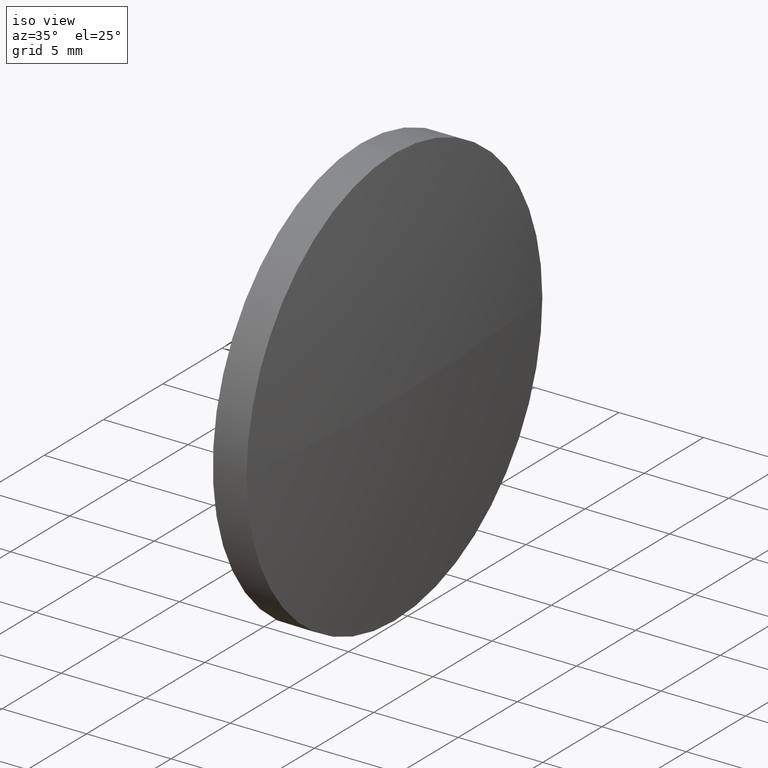
[diagram: clean part render]
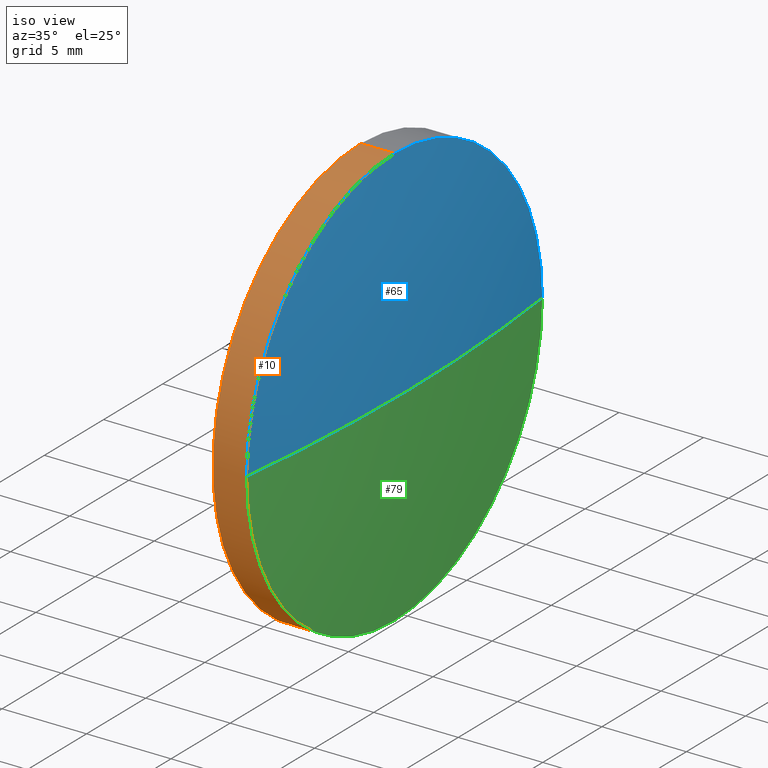
[diagram: same view with three faces highlighted in distinct colors, each labeled with its STEP entity id]
A machine part, iso view with three faces highlighted in distinct colors.
Their STEP definitions:

[orange] entity #10 — the highlighted cylindrical surface (partial cylindrical patch) has radius 12.5 mm, axis along (-1, -0, -0).
#2 = VERTEX_POINT ( 'NONE', #161 ) ;
#3 = EDGE_CURVE ( 'NONE', #50, #124, #34, .T. ) ;
#7 = DIRECTION ( 'NONE',  ( -1.000000000000000000, -0.0000000000000000000, -0.0000000000000000000 ) ) ;
#10 = ADVANCED_FACE ( 'NONE', ( #75 ), #104, .T. ) ;
#13 = EDGE_CURVE ( 'NONE', #90, #50, #142, .T. ) ;
#19 = EDGE_CURVE ( 'NONE', #159, #2, #67, .T. ) ;
#28 = ORIENTED_EDGE ( 'NONE', *, *, #3, .T. ) ;
#31 = AXIS2_PLACEMENT_3D ( 'NONE', #164, #106, #108 ) ;
#34 = LINE ( 'NONE', #174, #97 ) ;
#40 = CARTESIAN_POINT ( 'NONE',  ( 405.4479230910874300, 108.2513484294471600, 12.49999999999999600 ) ) ;
#50 = VERTEX_POINT ( 'NONE', #40 ) ;
#53 = AXIS2_PLACEMENT_3D ( 'NONE', #129, #7, #126 ) ;
#62 = DIRECTION ( 'NONE',  ( 0.0000000000000000000, 0.0000000000000000000, 1.000000000000000000 ) ) ;
#67 = LINE ( 'NONE', #87, #109 ) ;
#69 = AXIS2_PLACEMENT_3D ( 'NONE', #167, #117, #62 ) ;
#72 = EDGE_CURVE ( 'NONE', #159, #90, #133, .T. ) ;
#75 = FACE_OUTER_BOUND ( 'NONE', #86, .T. ) ;
#77 = AXIS2_PLACEMENT_3D ( 'NONE', #89, #147, #132 ) ;
#86 = EDGE_LOOP ( 'NONE', ( #128, #111, #123, #28, #156 ) ) ;
#87 = CARTESIAN_POINT ( 'NONE',  ( 401.0823071883264700, 108.2513484294471600, -12.49999999999999600 ) ) ;
#89 = CARTESIAN_POINT ( 'NONE',  ( 405.4479230910874300, 108.2513484294471600, 0.0000000000000000000 ) ) ;
#90 = VERTEX_POINT ( 'NONE', #114 ) ;
#91 = DIRECTION ( 'NONE',  ( -1.000000000000000000, -0.0000000000000000000, -0.0000000000000000000 ) ) ;
#97 = VECTOR ( 'NONE', #173, 1000.000000000000000 ) ;
#104 = CYLINDRICAL_SURFACE ( 'NONE', #53, 12.49999999999999600 ) ;
#106 = DIRECTION ( 'NONE',  ( -1.000000000000000000, -0.0000000000000000000, -0.0000000000000000000 ) ) ;
#108 = DIRECTION ( 'NONE',  ( 0.0000000000000000000, 0.0000000000000000000, 1.000000000000000000 ) ) ;
#109 = VECTOR ( 'NONE', #91, 1000.000000000000000 ) ;
#111 = ORIENTED_EDGE ( 'NONE', *, *, #72, .T. ) ;
#114 = CARTESIAN_POINT ( 'NONE',  ( 405.4479230910874300, 95.75134842944724800, 0.0000000000000000000 ) ) ;
#117 = DIRECTION ( 'NONE',  ( -1.000000000000000000, -0.0000000000000000000, -0.0000000000000000000 ) ) ;
#123 = ORIENTED_EDGE ( 'NONE', *, *, #13, .T. ) ;
#124 = VERTEX_POINT ( 'NONE', #150 ) ;
#126 = DIRECTION ( 'NONE',  ( 0.0000000000000000000, 0.0000000000000000000, 1.000000000000000000 ) ) ;
#128 = ORIENTED_EDGE ( 'NONE', *, *, #19, .F. ) ;
#129 = CARTESIAN_POINT ( 'NONE',  ( 401.0823071883264700, 108.2513484294471600, 0.0000000000000000000 ) ) ;
#132 = DIRECTION ( 'NONE',  ( 0.0000000000000000000, 0.0000000000000000000, 1.000000000000000000 ) ) ;
#133 = CIRCLE ( 'NONE', #31, 12.49999999999999600 ) ;
#138 = EDGE_CURVE ( 'NONE', #2, #124, #148, .T. ) ;
#142 = CIRCLE ( 'NONE', #77, 12.49999999999999600 ) ;
#147 = DIRECTION ( 'NONE',  ( -1.000000000000000000, -0.0000000000000000000, -0.0000000000000000000 ) ) ;
#148 = CIRCLE ( 'NONE', #69, 12.49999999999999600 ) ;
#150 = CARTESIAN_POINT ( 'NONE',  ( 403.4479230910874300, 108.2513484294471600, 12.49999999999999600 ) ) ;
#156 = ORIENTED_EDGE ( 'NONE', *, *, #138, .F. ) ;
#159 = VERTEX_POINT ( 'NONE', #176 ) ;
#161 = CARTESIAN_POINT ( 'NONE',  ( 403.4479230910874300, 108.2513484294471600, -12.49999999999999600 ) ) ;
#164 = CARTESIAN_POINT ( 'NONE',  ( 405.4479230910874300, 108.2513484294471600, 0.0000000000000000000 ) ) ;
#167 = CARTESIAN_POINT ( 'NONE',  ( 403.4479230910874300, 108.2513484294471600, 0.0000000000000000000 ) ) ;
#173 = DIRECTION ( 'NONE',  ( -1.000000000000000000, -0.0000000000000000000, -0.0000000000000000000 ) ) ;
#174 = CARTESIAN_POINT ( 'NONE',  ( 401.0823071883264700, 108.2513484294471600, 12.49999999999999600 ) ) ;
#176 = CARTESIAN_POINT ( 'NONE',  ( 405.4479230910874300, 108.2513484294471600, -12.49999999999999600 ) ) ;

[blue] entity #65 — the highlighted spherical surface has radius 103.176 mm.
#5 = FACE_OUTER_BOUND ( 'NONE', #70, .T. ) ;
#6 = CARTESIAN_POINT ( 'NONE',  ( 303.0318704595082400, 108.2513484294472100, 0.0000000000000000000 ) ) ;
#11 = DIRECTION ( 'NONE',  ( 0.0000000000000000000, 0.0000000000000000000, 1.000000000000000000 ) ) ;
#13 = EDGE_CURVE ( 'NONE', #90, #50, #142, .T. ) ;
#14 = AXIS2_PLACEMENT_3D ( 'NONE', #20, #179, #18 ) ;
#18 = DIRECTION ( 'NONE',  ( 0.0000000000000000000, 0.0000000000000000000, 1.000000000000000000 ) ) ;
#20 = CARTESIAN_POINT ( 'NONE',  ( 405.4479230910874300, 108.2513484294471600, 0.0000000000000000000 ) ) ;
#24 = AXIS2_PLACEMENT_3D ( 'NONE', #92, #66, #178 ) ;
#27 = EDGE_CURVE ( 'NONE', #52, #90, #145, .T. ) ;
#32 = CARTESIAN_POINT ( 'NONE',  ( 405.4479230910874300, 120.7513484294471200, 1.530808498934179500E-015 ) ) ;
#40 = CARTESIAN_POINT ( 'NONE',  ( 405.4479230910874300, 108.2513484294471600, 12.49999999999999600 ) ) ;
#50 = VERTEX_POINT ( 'NONE', #40 ) ;
#52 = VERTEX_POINT ( 'NONE', #58 ) ;
#54 = CIRCLE ( 'NONE', #24, 103.1760526315792000 ) ;
#58 = CARTESIAN_POINT ( 'NONE',  ( 406.2079230910874200, 108.2513484294472100, 0.0000000000000000000 ) ) ;
#59 = SPHERICAL_SURFACE ( 'NONE', #60, 103.1760526315792000 ) ;
#60 = AXIS2_PLACEMENT_3D ( 'NONE', #6, #11, #118 ) ;
#61 = ORIENTED_EDGE ( 'NONE', *, *, #13, .F. ) ;
#65 = ADVANCED_FACE ( 'NONE', ( #5 ), #59, .T. ) ;
#66 = DIRECTION ( 'NONE',  ( 0.0000000000000000000, -1.224646799147353200E-016, 1.000000000000000000 ) ) ;
#70 = EDGE_LOOP ( 'NONE', ( #103, #82, #112, #61 ) ) ;
#76 = CARTESIAN_POINT ( 'NONE',  ( 303.0318704595082400, 108.2513484294472100, 0.0000000000000000000 ) ) ;
#77 = AXIS2_PLACEMENT_3D ( 'NONE', #89, #147, #132 ) ;
#82 = ORIENTED_EDGE ( 'NONE', *, *, #99, .T. ) ;
#89 = CARTESIAN_POINT ( 'NONE',  ( 405.4479230910874300, 108.2513484294471600, 0.0000000000000000000 ) ) ;
#90 = VERTEX_POINT ( 'NONE', #114 ) ;
#92 = CARTESIAN_POINT ( 'NONE',  ( 303.0318704595082400, 108.2513484294472100, 0.0000000000000000000 ) ) ;
#99 = EDGE_CURVE ( 'NONE', #52, #165, #54, .T. ) ;
#103 = ORIENTED_EDGE ( 'NONE', *, *, #27, .F. ) ;
#110 = CIRCLE ( 'NONE', #14, 12.49999999999999600 ) ;
#112 = ORIENTED_EDGE ( 'NONE', *, *, #141, .F. ) ;
#114 = CARTESIAN_POINT ( 'NONE',  ( 405.4479230910874300, 95.75134842944724800, 0.0000000000000000000 ) ) ;
#118 = DIRECTION ( 'NONE',  ( 0.0000000000000000000, -1.000000000000000000, 0.0000000000000000000 ) ) ;
#121 = AXIS2_PLACEMENT_3D ( 'NONE', #76, #171, #127 ) ;
#127 = DIRECTION ( 'NONE',  ( -1.000000000000000000, 0.0000000000000000000, 0.0000000000000000000 ) ) ;
#132 = DIRECTION ( 'NONE',  ( 0.0000000000000000000, 0.0000000000000000000, 1.000000000000000000 ) ) ;
#141 = EDGE_CURVE ( 'NONE', #50, #165, #110, .T. ) ;
#142 = CIRCLE ( 'NONE', #77, 12.49999999999999600 ) ;
#145 = CIRCLE ( 'NONE', #121, 103.1760526315792000 ) ;
#147 = DIRECTION ( 'NONE',  ( -1.000000000000000000, -0.0000000000000000000, -0.0000000000000000000 ) ) ;
#165 = VERTEX_POINT ( 'NONE', #32 ) ;
#171 = DIRECTION ( 'NONE',  ( 0.0000000000000000000, 0.0000000000000000000, -1.000000000000000000 ) ) ;
#178 = DIRECTION ( 'NONE',  ( 0.0000000000000000000, -1.000000000000000000, -1.224646799147353200E-016 ) ) ;
#179 = DIRECTION ( 'NONE',  ( -1.000000000000000000, -0.0000000000000000000, -0.0000000000000000000 ) ) ;

[green] entity #79 — the highlighted spherical surface has radius 103.176 mm.
#16 = ORIENTED_EDGE ( 'NONE', *, *, #42, .F. ) ;
#24 = AXIS2_PLACEMENT_3D ( 'NONE', #92, #66, #178 ) ;
#27 = EDGE_CURVE ( 'NONE', #52, #90, #145, .T. ) ;
#29 = DIRECTION ( 'NONE',  ( 0.0000000000000000000, 0.0000000000000000000, 1.000000000000000000 ) ) ;
#31 = AXIS2_PLACEMENT_3D ( 'NONE', #164, #106, #108 ) ;
#32 = CARTESIAN_POINT ( 'NONE',  ( 405.4479230910874300, 120.7513484294471200, 1.530808498934179500E-015 ) ) ;
#37 = ORIENTED_EDGE ( 'NONE', *, *, #99, .F. ) ;
#39 = ORIENTED_EDGE ( 'NONE', *, *, #72, .F. ) ;
#41 = SPHERICAL_SURFACE ( 'NONE', #78, 103.1760526315792000 ) ;
#42 = EDGE_CURVE ( 'NONE', #165, #159, #48, .T. ) ;
#43 = CARTESIAN_POINT ( 'NONE',  ( 303.0318704595082400, 108.2513484294472100, 0.0000000000000000000 ) ) ;
#46 = DIRECTION ( 'NONE',  ( 0.0000000000000000000, 0.0000000000000000000, 1.000000000000000000 ) ) ;
#48 = CIRCLE ( 'NONE', #57, 12.49999999999999600 ) ;
#52 = VERTEX_POINT ( 'NONE', #58 ) ;
#54 = CIRCLE ( 'NONE', #24, 103.1760526315792000 ) ;
#57 = AXIS2_PLACEMENT_3D ( 'NONE', #113, #130, #29 ) ;
#58 = CARTESIAN_POINT ( 'NONE',  ( 406.2079230910874200, 108.2513484294472100, 0.0000000000000000000 ) ) ;
#66 = DIRECTION ( 'NONE',  ( 0.0000000000000000000, -1.224646799147353200E-016, 1.000000000000000000 ) ) ;
#72 = EDGE_CURVE ( 'NONE', #159, #90, #133, .T. ) ;
#76 = CARTESIAN_POINT ( 'NONE',  ( 303.0318704595082400, 108.2513484294472100, 0.0000000000000000000 ) ) ;
#78 = AXIS2_PLACEMENT_3D ( 'NONE', #43, #46, #152 ) ;
#79 = ADVANCED_FACE ( 'NONE', ( #85 ), #41, .T. ) ;
#85 = FACE_OUTER_BOUND ( 'NONE', #170, .T. ) ;
#90 = VERTEX_POINT ( 'NONE', #114 ) ;
#92 = CARTESIAN_POINT ( 'NONE',  ( 303.0318704595082400, 108.2513484294472100, 0.0000000000000000000 ) ) ;
#99 = EDGE_CURVE ( 'NONE', #52, #165, #54, .T. ) ;
#106 = DIRECTION ( 'NONE',  ( -1.000000000000000000, -0.0000000000000000000, -0.0000000000000000000 ) ) ;
#108 = DIRECTION ( 'NONE',  ( 0.0000000000000000000, 0.0000000000000000000, 1.000000000000000000 ) ) ;
#113 = CARTESIAN_POINT ( 'NONE',  ( 405.4479230910874300, 108.2513484294471600, 0.0000000000000000000 ) ) ;
#114 = CARTESIAN_POINT ( 'NONE',  ( 405.4479230910874300, 95.75134842944724800, 0.0000000000000000000 ) ) ;
#121 = AXIS2_PLACEMENT_3D ( 'NONE', #76, #171, #127 ) ;
#127 = DIRECTION ( 'NONE',  ( -1.000000000000000000, 0.0000000000000000000, 0.0000000000000000000 ) ) ;
#130 = DIRECTION ( 'NONE',  ( -1.000000000000000000, -0.0000000000000000000, -0.0000000000000000000 ) ) ;
#133 = CIRCLE ( 'NONE', #31, 12.49999999999999600 ) ;
#145 = CIRCLE ( 'NONE', #121, 103.1760526315792000 ) ;
#152 = DIRECTION ( 'NONE',  ( 0.0000000000000000000, -1.000000000000000000, 0.0000000000000000000 ) ) ;
#159 = VERTEX_POINT ( 'NONE', #176 ) ;
#164 = CARTESIAN_POINT ( 'NONE',  ( 405.4479230910874300, 108.2513484294471600, 0.0000000000000000000 ) ) ;
#165 = VERTEX_POINT ( 'NONE', #32 ) ;
#170 = EDGE_LOOP ( 'NONE', ( #37, #183, #39, #16 ) ) ;
#171 = DIRECTION ( 'NONE',  ( 0.0000000000000000000, 0.0000000000000000000, -1.000000000000000000 ) ) ;
#176 = CARTESIAN_POINT ( 'NONE',  ( 405.4479230910874300, 108.2513484294471600, -12.49999999999999600 ) ) ;
#178 = DIRECTION ( 'NONE',  ( 0.0000000000000000000, -1.000000000000000000, -1.224646799147353200E-016 ) ) ;
#183 = ORIENTED_EDGE ( 'NONE', *, *, #27, .T. ) ;